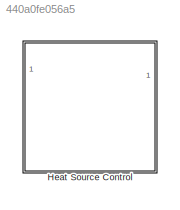
MODEL slx_440a0fe056a5
KIND library
CONFIG AbsTol = auto
CONFIG EnableMultiTasking = off
CONFIG FixedStep = auto
CONFIG MaxStep = auto
CONFIG MinStep = auto
CONFIG RelTol = 1e-3
CONFIG SampleTimeConstraint = Unconstrained
CONFIG SolverName = VariableStepAuto
CONFIG StartTime = 0.0
CONFIG StopTime = 10.0
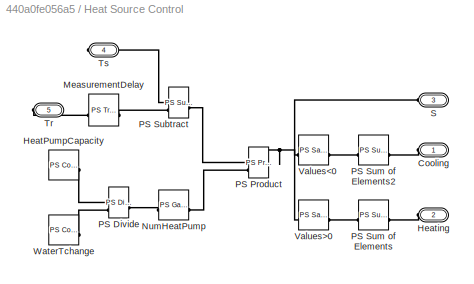
BLOCK [SubSystem] Heat Source Control
BLOCK [PMIOPort] Heat Source Control/Cooling
  NameLocation = right
  Side = Left
BLOCK [Reference] Heat Source Control/HeatPumpCapacity  REF=fl_lib/Physical Signals/Sources/PS Constant
  NameLocation = left
  SourceBlock = fl_lib/Physical Signals/Sources/PS Constant
  SourceType = PS Constant
BLOCK [PMIOPort] Heat Source Control/Heating
  NameLocation = right
  Port = 2
  Side = Left
BLOCK [Reference] Heat Source Control/MeasurementDelay  REF=fl_lib/Physical Signals/Linear Operators/PS Transfer Function
  SourceBlock = fl_lib/Physical Signals/Linear Operators/PS Transfer Function
  SourceType = PS Transfer Function
BLOCK [Reference] Heat Source Control/NumHeatPump  REF=fl_lib/Physical Signals/Functions/PS Gain
  SourceBlock = fl_lib/Physical Signals/Functions/PS Gain
  SourceType = PS Gain
BLOCK [Reference] Heat Source Control/PS Divide  REF=fl_lib/Physical Signals/Functions/PS Divide
  SourceBlock = fl_lib/Physical Signals/Functions/PS Divide
  SourceType = PS Divide
BLOCK [Reference] Heat Source Control/PS Product  REF=fl_lib/Physical Signals/Functions/PS Product
  SourceBlock = fl_lib/Physical Signals/Functions/PS Product
  SourceType = PS Product
BLOCK [Reference] Heat Source Control/PS Subtract  REF=fl_lib/Physical Signals/Functions/PS Subtract
  SourceBlock = fl_lib/Physical Signals/Functions/PS Subtract
  SourceType = PS Subtract
BLOCK [Reference] Heat Source Control/PS Sum of Elements  REF=fl_lib/Physical Signals/Functions/PS Sum of Elements
  SourceBlock = fl_lib/Physical Signals/Functions/PS Sum of Elements
  SourceType = PS Sum of Elements
BLOCK [Reference] Heat Source Control/PS Sum of Elements2  REF=fl_lib/Physical Signals/Functions/PS Sum of Elements
  SourceBlock = fl_lib/Physical Signals/Functions/PS Sum of Elements
  SourceType = PS Sum of Elements
BLOCK [PMIOPort] Heat Source Control/S
  NameLocation = right
  Port = 3
  Side = Left
BLOCK [PMIOPort] Heat Source Control/Tr
  NameLocation = left
  Port = 5
  Side = Right
BLOCK [PMIOPort] Heat Source Control/Ts
  NameLocation = left
  Port = 4
  Side = Right
BLOCK [Reference] Heat Source Control/Values<0  REF=fl_lib/Physical Signals/Nonlinear Operators/PS Saturation
  SourceBlock = fl_lib/Physical Signals/Nonlinear Operators/PS Saturation
  SourceType = PS Saturation
BLOCK [Reference] Heat Source Control/Values>0  REF=fl_lib/Physical Signals/Nonlinear Operators/PS Saturation
  SourceBlock = fl_lib/Physical Signals/Nonlinear Operators/PS Saturation
  SourceType = PS Saturation
BLOCK [Reference] Heat Source Control/WaterTchange  REF=fl_lib/Physical Signals/Sources/PS Constant
  NameLocation = left
  SourceBlock = fl_lib/Physical Signals/Sources/PS Constant
  SourceType = PS Constant
PLINE Heat Source Control/Cooling:RConn1 -- Heat Source Control/PS Sum of Elements2:RConn1
PLINE Heat Source Control/HeatPumpCapacity:RConn1 -- Heat Source Control/PS Divide:LConn1
PLINE Heat Source Control/Heating:RConn1 -- Heat Source Control/PS Sum of Elements:RConn1
PLINE Heat Source Control/MeasurementDelay:LConn1 -- Heat Source Control/Tr:RConn1
PLINE Heat Source Control/MeasurementDelay:RConn1 -- Heat Source Control/PS Subtract:LConn2
PLINE Heat Source Control/NumHeatPump:LConn1 -- Heat Source Control/PS Divide:RConn1
PLINE Heat Source Control/NumHeatPump:RConn1 -- Heat Source Control/PS Product:LConn2
PLINE Heat Source Control/PS Divide:LConn2 -- Heat Source Control/WaterTchange:RConn1
PLINE Heat Source Control/PS Product:LConn1 -- Heat Source Control/PS Subtract:RConn1
PNET net1: Heat Source Control/PS Product:RConn1 -- Heat Source Control/S:RConn1 -- Heat Source Control/Values<0:LConn1 -- Heat Source Control/Values>0:LConn1
PLINE Heat Source Control/PS Subtract:LConn1 -- Heat Source Control/Ts:RConn1
PLINE Heat Source Control/PS Sum of Elements2:LConn1 -- Heat Source Control/Values<0:RConn1
PLINE Heat Source Control/PS Sum of Elements:LConn1 -- Heat Source Control/Values>0:RConn1
note: PNET lines group multi-terminal physical nets as a canonical sorted terminal list (undirected conserving connections); 2-terminal nets keep the pairwise PLINE form
